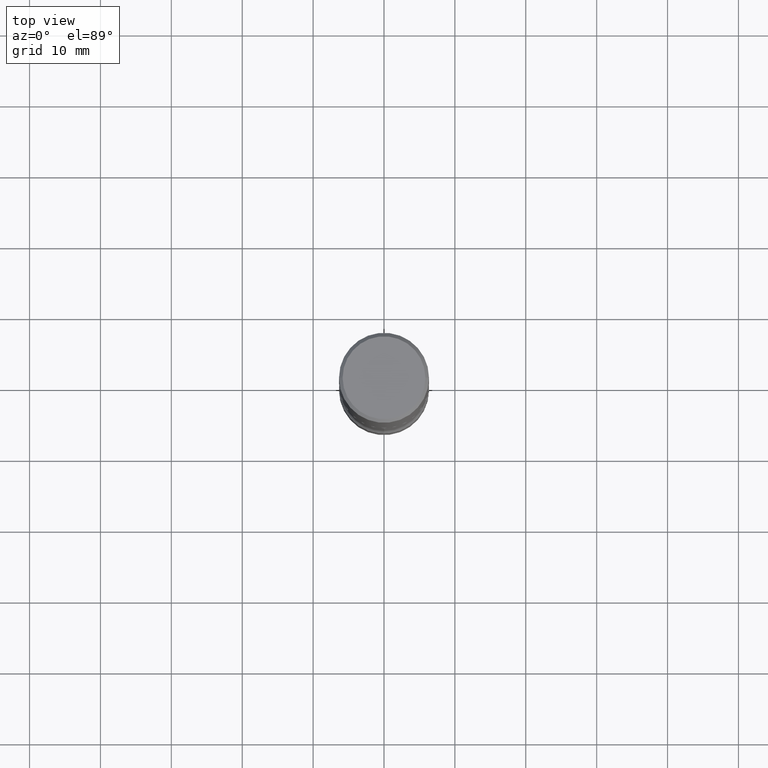
[diagram: clean part render]
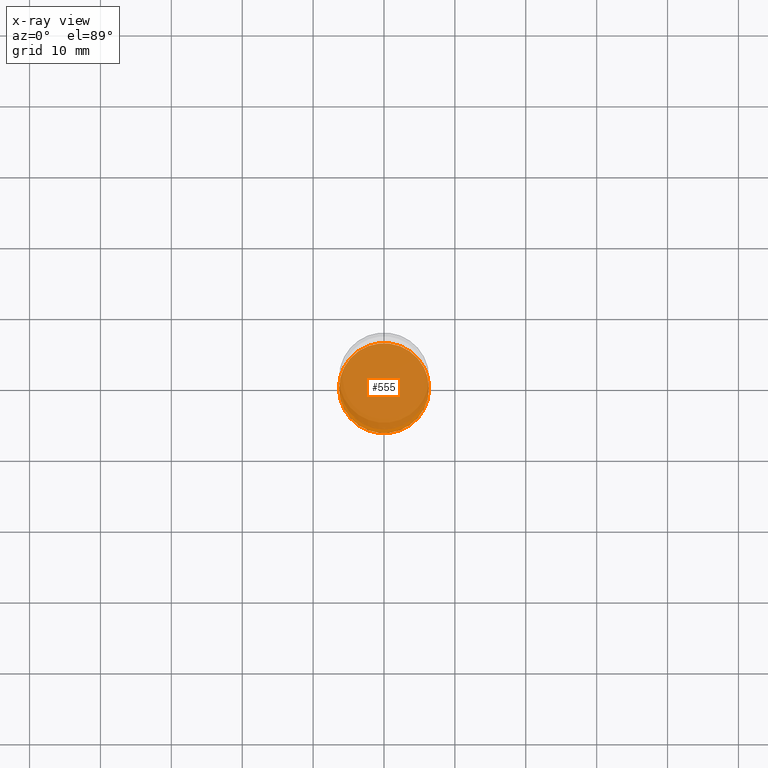
[diagram: x-ray — body ghosted, one internal face saturated and labeled with its STEP entity id]
A machine part, top view, then the same camera in x-ray: the body is ghosted and one INTERNAL B-rep face — a face not visible from any outside direction — is saturated and labeled: STEP entity #555.
In plain terms, the highlighted planar face has unit normal (0, -0, -1).
Its self-contained STEP definition (entity closure, byte-faithful):
#72 = CIRCLE ( 'NONE', #388, 0.2500000000000000000 ) ;
#89 = CARTESIAN_POINT ( 'NONE',  ( 3.102831224040029093E-29, -1.915973910148912659E-14, -3.375000000000000000 ) ) ;
#101 = PLANE ( 'NONE',  #402 ) ;
#131 = CARTESIAN_POINT ( 'NONE',  ( 0.2500000000000000000, -1.352949018801718119E-14, -3.375000000000000000 ) ) ;
#136 = CIRCLE ( 'NONE', #546, 0.2500000000000000000 ) ;
#143 = EDGE_CURVE ( 'NONE', #532, #536, #136, .T. ) ;
#169 = DIRECTION ( 'NONE',  ( 2.438088387897960049E-29, -3.491481338843145188E-15, -1.000000000000000000 ) ) ;
#253 = EDGE_CURVE ( 'NONE', #536, #532, #72, .T. ) ;
#284 = CARTESIAN_POINT ( 'NONE',  ( 8.253457220874836014E-29, -1.178374951859561452E-14, -3.375000000000000000 ) ) ;
#292 = DIRECTION ( 'NONE',  ( 1.000000000000000000, -6.982962677686262766E-15, 0.000000000000000000 ) ) ;
#294 = ORIENTED_EDGE ( 'NONE', *, *, #253, .T. ) ;
#336 = DIRECTION ( 'NONE',  ( -2.445468806185136597E-29, 3.491481338843145583E-15, 1.000000000000000000 ) ) ;
#342 = EDGE_LOOP ( 'NONE', ( #559, #294 ) ) ;
#352 = DIRECTION ( 'NONE',  ( -1.000000000000000000, 6.982962677686265922E-15, -4.876176775795935793E-29 ) ) ;
#379 = DIRECTION ( 'NONE',  ( 1.000000000000000000, -6.982962677686262766E-15, 0.000000000000000000 ) ) ;
#388 = AXIS2_PLACEMENT_3D ( 'NONE', #284, #336, #379 ) ;
#402 = AXIS2_PLACEMENT_3D ( 'NONE', #89, #169, #352 ) ;
#412 = DIRECTION ( 'NONE',  ( -2.445468806185136597E-29, 3.491481338843145583E-15, 1.000000000000000000 ) ) ;
#413 = CARTESIAN_POINT ( 'NONE',  ( 8.253457220874836014E-29, -1.178374951859561452E-14, -3.375000000000000000 ) ) ;
#470 = CARTESIAN_POINT ( 'NONE',  ( -0.2500000000000000000, -1.099373615741855222E-14, -3.375000000000000000 ) ) ;
#488 = FACE_OUTER_BOUND ( 'NONE', #342, .T. ) ;
#532 = VERTEX_POINT ( 'NONE', #131 ) ;
#536 = VERTEX_POINT ( 'NONE', #470 ) ;
#546 = AXIS2_PLACEMENT_3D ( 'NONE', #413, #412, #292 ) ;
#555 = ADVANCED_FACE ( 'NONE', ( #488 ), #101, .F. ) ;
#559 = ORIENTED_EDGE ( 'NONE', *, *, #143, .T. ) ;